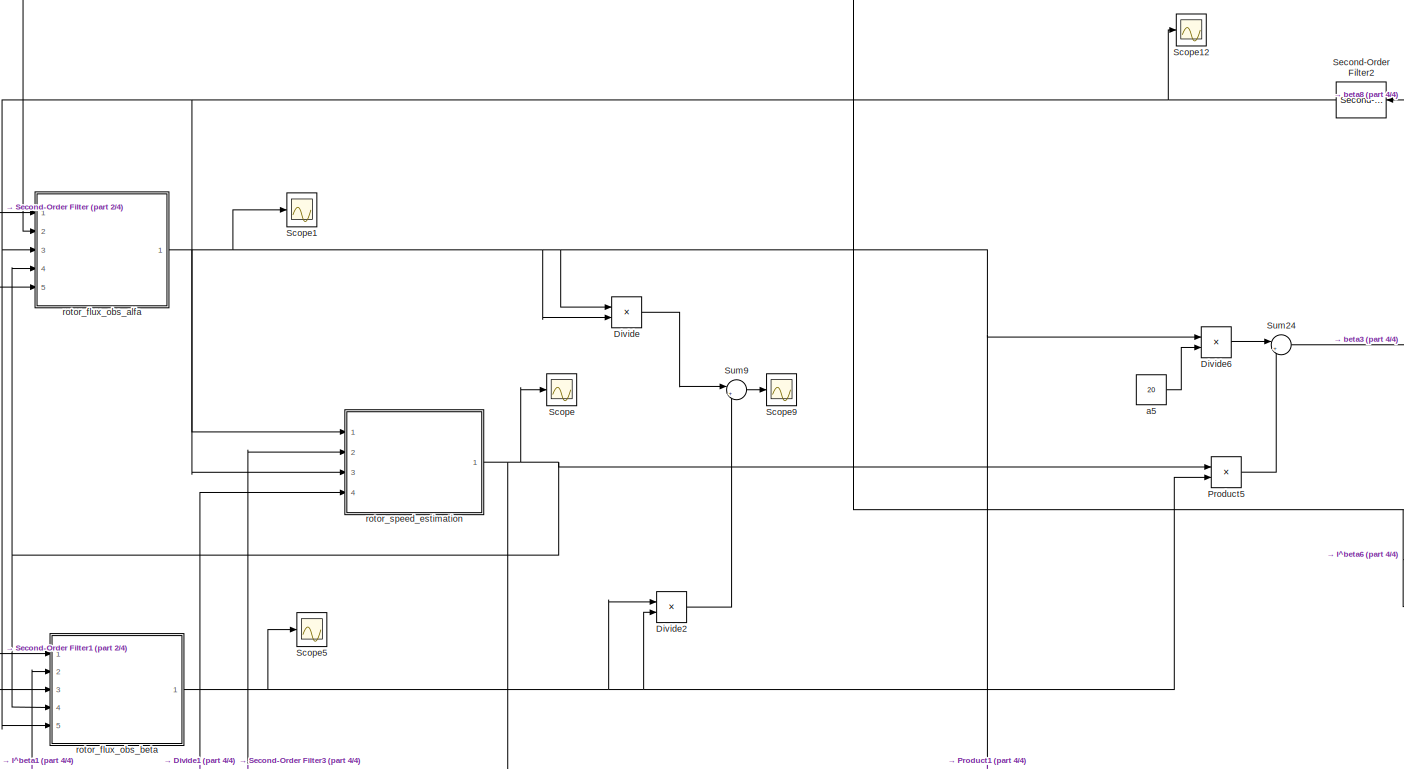
[diagram: root canvas - part 1/4, middle right region]
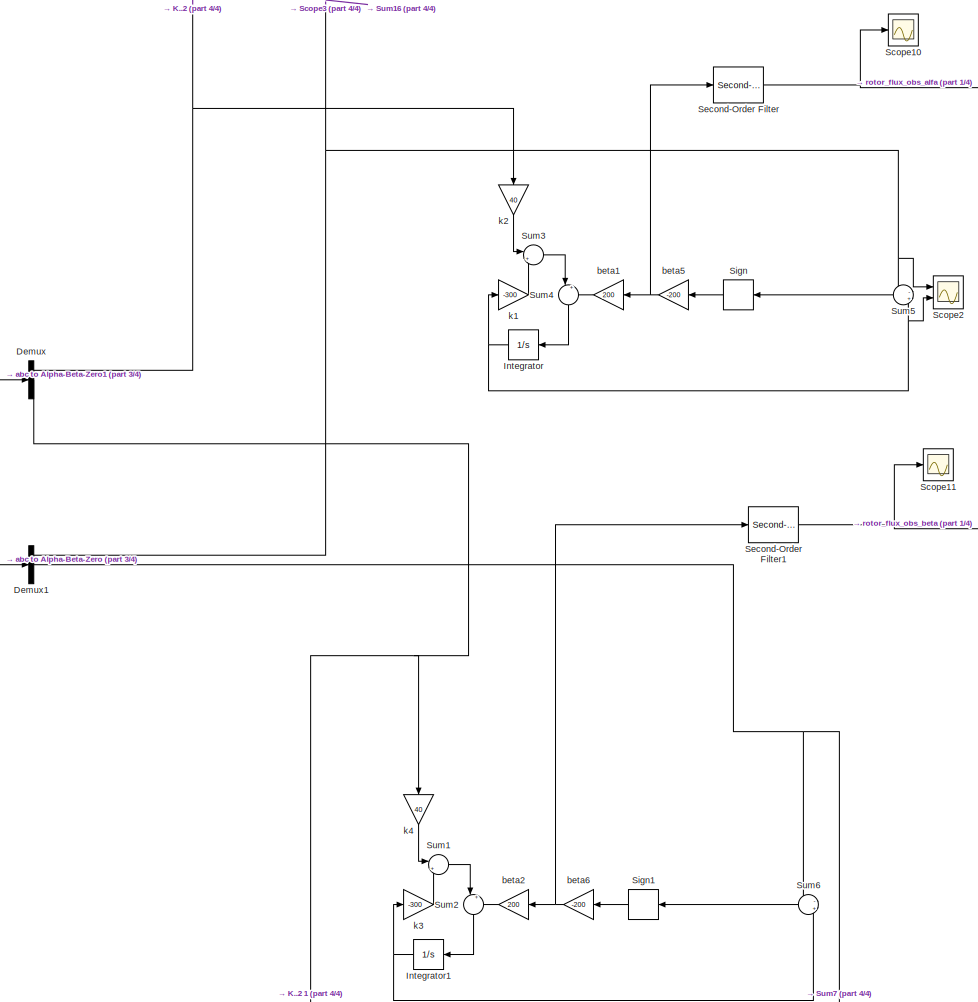
[diagram: root canvas - part 2/4, central region]
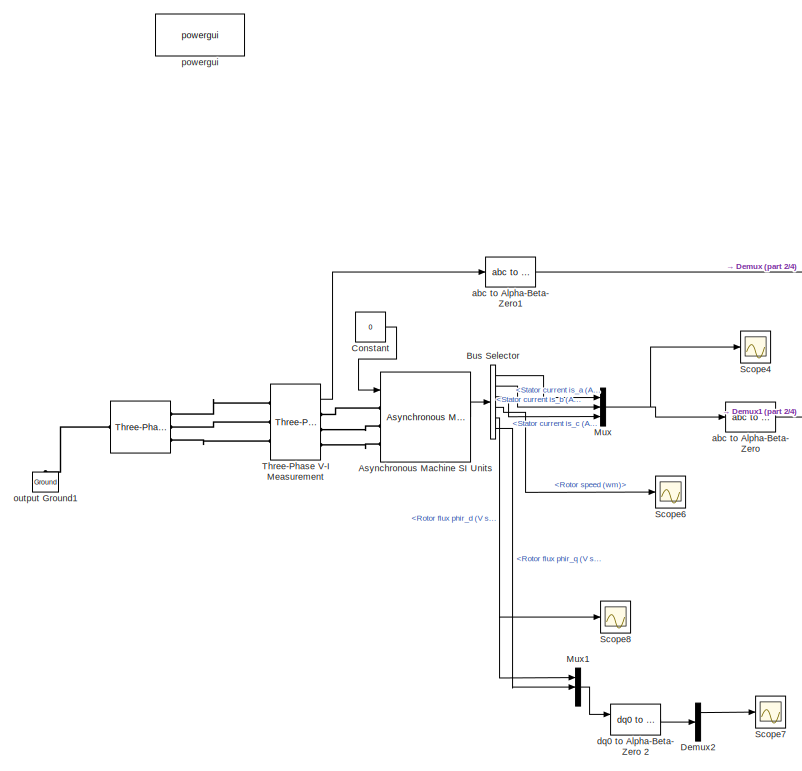
[diagram: root canvas - part 3/4, middle left region]
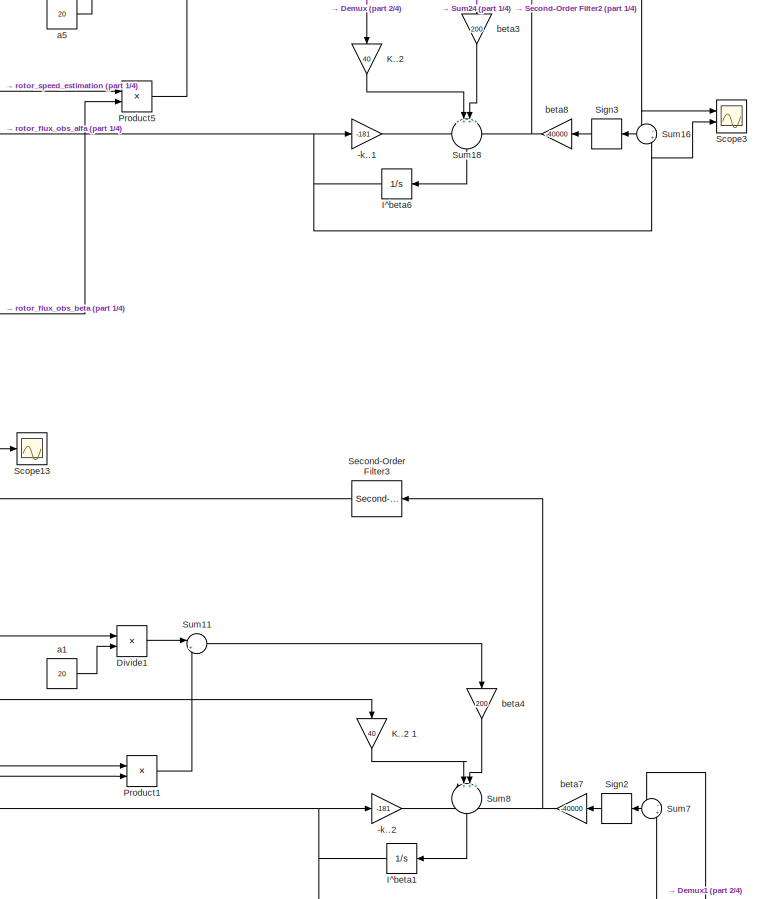
[diagram: root canvas - part 4/4, middle right region]
MODEL slx_8fc154f89b33
KIND model
CONFIG AbsTol = auto
CONFIG FixedStep = auto
CONFIG MaxStep = auto
CONFIG MinStep = auto
CONFIG RelTol = 1e-3
CONFIG SampleTimeConstraint = Unconstrained
CONFIG Solver = VariableStepAuto
CONFIG SolverMode = Auto
CONFIG SolverName = VariableStepAuto
CONFIG StartTime = 0.0
CONFIG StopTime = 20
BLOCK [Reference]    REF=powerlib/Electrical
Sources/Three-Phase
Programmable
Voltage Source
  Ports = [0, 0, 0, 0, 0, 1, 3]
  SourceBlock = powerlib/Electrical\nSources/Three-Phase\nProgrammable\nVoltage Source
  SourceType = Three-Phase Programmable Voltage Source
BLOCK [Gain] -k..1
  Gain = -181
  OutDataTypeStr = Inherit: Inherit via internal rule
  ParamDataTypeStr = Inherit: Inherit via internal rule
  SaturateOnIntegerOverflow = off
BLOCK [Gain] -k..2
  Gain = -181
  OutDataTypeStr = Inherit: Inherit via internal rule
  ParamDataTypeStr = Inherit: Inherit via internal rule
  SaturateOnIntegerOverflow = off
BLOCK [Reference] Asynchronous Machine SI Units  REF=powerlib/Machines/Asynchronous Machine
SI Units
  Ports = [1, 1, 0, 0, 0, 3]
  SourceBlock = powerlib/Machines/Asynchronous Machine\nSI Units
  SourceType = Asynchronous Machine
BLOCK [BusSelector] Bus Selector
  OutputSignals = Stator measurements.Stator current is_a (A),Stator measurements.Stator current is_b (A),Stator measurements.Stator current is_c (A),Mechanical.Rotor speed (wm),Rotor measurements.Rotor flux phir_d (V s),Rotor measurements.Rotor flux phir_q (V s)
  Ports = [1, 6]
BLOCK [Constant] Constant
  Value = 0
BLOCK [Demux] Demux
  DisplayOption = bar
  Outputs = 3
  Ports = [1, 3]
BLOCK [Demux] Demux1
  DisplayOption = bar
  Outputs = 3
  Ports = [1, 3]
BLOCK [Demux] Demux2
  DisplayOption = bar
  Outputs = 3
  Ports = [1, 3]
BLOCK [Product] Divide
  InputSameDT = off
  Inputs = **
  OutDataTypeStr = Inherit: Inherit via internal rule
  Ports = [2, 1]
  RndMeth = Floor
  SaturateOnIntegerOverflow = off
BLOCK [Product] Divide1
  InputSameDT = off
  Inputs = */
  OutDataTypeStr = Inherit: Inherit via internal rule
  Ports = [2, 1]
  RndMeth = Floor
  SaturateOnIntegerOverflow = off
BLOCK [Product] Divide2
  InputSameDT = off
  Inputs = **
  OutDataTypeStr = Inherit: Inherit via internal rule
  Ports = [2, 1]
  RndMeth = Floor
  SaturateOnIntegerOverflow = off
BLOCK [Product] Divide6
  InputSameDT = off
  Inputs = */
  OutDataTypeStr = Inherit: Inherit via internal rule
  Ports = [2, 1]
  RndMeth = Floor
  SaturateOnIntegerOverflow = off
BLOCK [Integrator] I^beta1
  Ports = [1, 1]
BLOCK [Integrator] I^beta6
  Ports = [1, 1]
BLOCK [Integrator] Integrator
  Ports = [1, 1]
BLOCK [Integrator] Integrator1
  Ports = [1, 1]
BLOCK [Gain] K..2 
  Gain = 40
  OutDataTypeStr = Inherit: Inherit via internal rule
  ParamDataTypeStr = Inherit: Inherit via internal rule
  SaturateOnIntegerOverflow = off
BLOCK [Gain] K..2 1
  Gain = 40
  OutDataTypeStr = Inherit: Inherit via internal rule
  ParamDataTypeStr = Inherit: Inherit via internal rule
  SaturateOnIntegerOverflow = off
BLOCK [Mux] Mux
  DisplayOption = bar
  Inputs = 3
  Ports = [3, 1]
BLOCK [Mux] Mux1
  DisplayOption = bar
  Inputs = 3
  Ports = [3, 1]
BLOCK [Product] Product1
  InputSameDT = off
  OutDataTypeStr = Inherit: Inherit via internal rule
  Ports = [2, 1]
  RndMeth = Floor
  SaturateOnIntegerOverflow = off
BLOCK [Product] Product5
  InputSameDT = off
  OutDataTypeStr = Inherit: Inherit via internal rule
  Ports = [2, 1]
  RndMeth = Floor
  SaturateOnIntegerOverflow = off
BLOCK [Scope] Scope
  Ports = [1]
  ScopeSpecificationString = Simulink.scopes.TimeScopeBlockCfg('CurrentConfiguration', extmgr.ConfigurationSet(extmgr.Configuration('Core','General UI',true),extmgr.Configuration('Core','Source UI',true),extmgr.Configuration('Sources','WiredSimulink',true,'DataLoggingVariableName','ScopeData4'),extmgr.Configuration('Visuals','Time Domain',true,'SerializedDisplays',{struct('MinYLimReal','-23.16201','MaxYLimReal','52.52928','YL...<+1761ch>
BLOCK [Scope] Scope1
  Ports = [1]
  ScopeSpecificationString = Simulink.scopes.TimeScopeBlockCfg('CurrentConfiguration', extmgr.ConfigurationSet(extmgr.Configuration('Core','General UI',true),extmgr.Configuration('Core','Source UI',true),extmgr.Configuration('Sources','WiredSimulink',true,'DataLoggingVariableName','ScopeData1'),extmgr.Configuration('Visuals','Time Domain',true,'SerializedDisplays',{struct('MinYLimReal','-37.30643','MaxYLimReal','36.87643','YL...<+1761ch>
BLOCK [Scope] Scope10
  Ports = [1]
  ScopeSpecificationString = Simulink.scopes.TimeScopeBlockCfg('CurrentConfiguration', extmgr.ConfigurationSet(extmgr.Configuration('Core','General UI',true),extmgr.Configuration('Core','Source UI',true),extmgr.Configuration('Sources','WiredSimulink',true,'DataLoggingVariableName','ScopeData1'),extmgr.Configuration('Visuals','Time Domain',true,'SerializedDisplays',{struct('MinYLimReal','-2.141','MaxYLimReal','2.69032','YLabel...<+1447ch>
BLOCK [Scope] Scope11
  Ports = [1]
  ScopeSpecificationString = Simulink.scopes.TimeScopeBlockCfg('CurrentConfiguration', extmgr.ConfigurationSet(extmgr.Configuration('Core','General UI',true),extmgr.Configuration('Core','Source UI',true),extmgr.Configuration('Sources','WiredSimulink',true,'DataLoggingVariableName','ScopeData2'),extmgr.Configuration('Visuals','Time Domain',true,'SerializedDisplays',{struct('MinYLimReal','-195.24675','MaxYLimReal','211.59551','...<+1418ch>
BLOCK [Scope] Scope12
  Ports = [1]
  ScopeSpecificationString = Simulink.scopes.TimeScopeBlockCfg('CurrentConfiguration', extmgr.ConfigurationSet(extmgr.Configuration('Core','General UI',true),extmgr.Configuration('Core','Source UI',true),extmgr.Configuration('Sources','WiredSimulink',true,'DataLoggingVariableName','ScopeData3'),extmgr.Configuration('Visuals','Time Domain',true,'SerializedDisplays',{struct('MinYLimReal','-29490.76733','MaxYLimReal','37395.1165...<+1434ch>
BLOCK [Scope] Scope13
  Ports = [1]
  ScopeSpecificationString = Simulink.scopes.TimeScopeBlockCfg('CurrentConfiguration', extmgr.ConfigurationSet(extmgr.Configuration('Core','General UI',true),extmgr.Configuration('Core','Source UI',true),extmgr.Configuration('Sources','WiredSimulink',true,'DataLoggingVariableName','ScopeData4'),extmgr.Configuration('Visuals','Time Domain',true,'SerializedDisplays',{struct('MinYLimReal','-35731.72435','MaxYLimReal','38317.4771...<+1405ch>
BLOCK [Scope] Scope2
  NumInputPorts = 2
  Ports = [2]
  ScopeSpecificationString = Simulink.scopes.TimeScopeBlockCfg('CurrentConfiguration', extmgr.ConfigurationSet(extmgr.Configuration('Core','General UI',true),extmgr.Configuration('Core','Source UI',true),extmgr.Configuration('Sources','WiredSimulink',true,'DataLoggingVariableName','ScopeData1'),extmgr.Configuration('Visuals','Time Domain',true,'SerializedDisplays',{struct('MinYLimReal','-18.00813','MaxYLimReal','15.06814','YL...<+1793ch>
BLOCK [Scope] Scope3
  NumInputPorts = 2
  Ports = [2]
  ScopeSpecificationString = Simulink.scopes.TimeScopeBlockCfg('CurrentConfiguration', extmgr.ConfigurationSet(extmgr.Configuration('Core','General UI',true),extmgr.Configuration('Core','Source UI',true),extmgr.Configuration('Sources','WiredSimulink',true,'DataLoggingVariableName','ScopeData3'),extmgr.Configuration('Visuals','Time Domain',true,'SerializedDisplays',{struct('MinYLimReal','-36012277195741.312','MaxYLimReal','369...<+1877ch>
BLOCK [Scope] Scope4
  Ports = [1]
  ScopeSpecificationString = Simulink.scopes.TimeScopeBlockCfg('CurrentConfiguration', extmgr.ConfigurationSet(extmgr.Configuration('Core','General UI',true),extmgr.Configuration('Core','Source UI',true),extmgr.Configuration('Sources','WiredSimulink',true,'DataLoggingVariableName','ScopeData1'),extmgr.Configuration('Visuals','Time Domain',true,'SerializedDisplays',{struct('MinYLimReal','-179.12191','MaxYLimReal','191.37246','...<+1498ch>
BLOCK [Scope] Scope5
  Ports = [1]
  ScopeSpecificationString = Simulink.scopes.TimeScopeBlockCfg('CurrentConfiguration', extmgr.ConfigurationSet(extmgr.Configuration('Core','General UI',true),extmgr.Configuration('Core','Source UI',true),extmgr.Configuration('Sources','WiredSimulink',true,'DataLoggingVariableName','ScopeData2'),extmgr.Configuration('Visuals','Time Domain',true,'SerializedDisplays',{struct('MinYLimReal','-761705385.54274','MaxYLimReal','683325...<+1821ch>
BLOCK [Scope] Scope6
  Ports = [1]
  ScopeSpecificationString = Simulink.scopes.TimeScopeBlockCfg('CurrentConfiguration', extmgr.ConfigurationSet(extmgr.Configuration('Core','General UI',true),extmgr.Configuration('Core','Source UI',true),extmgr.Configuration('Sources','WiredSimulink',true,'DataLoggingVariableName','ScopeData2'),extmgr.Configuration('Visuals','Time Domain',true,'SerializedDisplays',{struct('MinYLimReal','78.06459','MaxYLimReal','548.3218','YLa...<+1458ch>
BLOCK [Scope] Scope7
  Ports = [1]
  ScopeSpecificationString = Simulink.scopes.TimeScopeBlockCfg('CurrentConfiguration', extmgr.ConfigurationSet(extmgr.Configuration('Core','General UI',true),extmgr.Configuration('Core','Source UI',true),extmgr.Configuration('Sources','WiredSimulink',true,'DataLoggingVariableName','ScopeData1'),extmgr.Configuration('Visuals','Time Domain',true,'SerializedDisplays',{struct('MinYLimReal','-2.47255','MaxYLimReal','2.51963','YLab...<+1442ch>
BLOCK [Scope] Scope8
  Ports = [1]
  ScopeSpecificationString = Simulink.scopes.TimeScopeBlockCfg('CurrentConfiguration', extmgr.ConfigurationSet(extmgr.Configuration('Core','General UI',true),extmgr.Configuration('Core','Source UI',true),extmgr.Configuration('Sources','WiredSimulink',true,'DataLoggingVariableName','ScopeData2'),extmgr.Configuration('Visuals','Time Domain',true,'SerializedDisplays',{struct('MinYLimReal','-0.85058','MaxYLimReal','1.03338','YLab...<+1459ch>
BLOCK [Scope] Scope9
  Ports = [1]
  ScopeSpecificationString = Simulink.scopes.TimeScopeBlockCfg('CurrentConfiguration', extmgr.ConfigurationSet(extmgr.Configuration('Core','General UI',true),extmgr.Configuration('Core','Source UI',true),extmgr.Configuration('Sources','WiredSimulink',true,'DataLoggingVariableName','ScopeData1'),extmgr.Configuration('Visuals','Time Domain',true,'SerializedDisplays',{struct('MinYLimReal','-134.65451','MaxYLimReal','1211.89059',...<+1757ch>
BLOCK [Reference] Second-Order Filter  REF=powerlib_meascontrol/Filters/Second-Order
Filter
  Ports = [1, 1]
  SourceBlock = powerlib_meascontrol/Filters/Second-Order\nFilter
  SourceType = Second-Order Filter
BLOCK [Reference] Second-Order Filter1  REF=powerlib_meascontrol/Filters/Second-Order
Filter
  Ports = [1, 1]
  SourceBlock = powerlib_meascontrol/Filters/Second-Order\nFilter
  SourceType = Second-Order Filter
BLOCK [Reference] Second-Order Filter2  REF=powerlib_meascontrol/Filters/Second-Order
Filter
  Ports = [1, 1]
  SourceBlock = powerlib_meascontrol/Filters/Second-Order\nFilter
  SourceType = Second-Order Filter
BLOCK [Reference] Second-Order Filter3  REF=powerlib_meascontrol/Filters/Second-Order
Filter
  Ports = [1, 1]
  SourceBlock = powerlib_meascontrol/Filters/Second-Order\nFilter
  SourceType = Second-Order Filter
BLOCK [Signum] Sign
BLOCK [Signum] Sign1
BLOCK [Signum] Sign2
BLOCK [Signum] Sign3
BLOCK [Sum] Sum1
  IconShape = round
  InputSameDT = off
  Inputs = |++
  OutDataTypeStr = Inherit: Inherit via internal rule
  Ports = [2, 1]
  SaturateOnIntegerOverflow = off
BLOCK [Sum] Sum11
  IconShape = round
  InputSameDT = off
  Inputs = |+-
  OutDataTypeStr = Inherit: Inherit via internal rule
  Ports = [2, 1]
  SaturateOnIntegerOverflow = off
BLOCK [Sum] Sum16
  IconShape = round
  InputSameDT = off
  Inputs = -+
  OutDataTypeStr = Inherit: Inherit via internal rule
  Ports = [2, 1]
  SaturateOnIntegerOverflow = off
BLOCK [Sum] Sum18
  IconShape = round
  InputSameDT = off
  Inputs = ++++
  OutDataTypeStr = Inherit: Inherit via internal rule
  Ports = [4, 1]
  SaturateOnIntegerOverflow = off
BLOCK [Sum] Sum2
  IconShape = round
  InputSameDT = off
  Inputs = |++
  OutDataTypeStr = Inherit: Inherit via internal rule
  Ports = [2, 1]
  SaturateOnIntegerOverflow = off
BLOCK [Sum] Sum24
  IconShape = round
  InputSameDT = off
  Inputs = |++
  OutDataTypeStr = Inherit: Inherit via internal rule
  Ports = [2, 1]
  SaturateOnIntegerOverflow = off
BLOCK [Sum] Sum3
  IconShape = round
  InputSameDT = off
  Inputs = |++
  OutDataTypeStr = Inherit: Inherit via internal rule
  Ports = [2, 1]
  SaturateOnIntegerOverflow = off
BLOCK [Sum] Sum4
  IconShape = round
  InputSameDT = off
  Inputs = |++
  OutDataTypeStr = Inherit: Inherit via internal rule
  Ports = [2, 1]
  SaturateOnIntegerOverflow = off
BLOCK [Sum] Sum5
  IconShape = round
  InputSameDT = off
  Inputs = -+
  OutDataTypeStr = Inherit: Inherit via internal rule
  Ports = [2, 1]
  SaturateOnIntegerOverflow = off
BLOCK [Sum] Sum6
  IconShape = round
  InputSameDT = off
  Inputs = -+
  OutDataTypeStr = Inherit: Inherit via internal rule
  Ports = [2, 1]
  SaturateOnIntegerOverflow = off
BLOCK [Sum] Sum7
  IconShape = round
  InputSameDT = off
  Inputs = -+
  OutDataTypeStr = Inherit: Inherit via internal rule
  Ports = [2, 1]
  SaturateOnIntegerOverflow = off
BLOCK [Sum] Sum8
  IconShape = round
  InputSameDT = off
  Inputs = |++++
  OutDataTypeStr = Inherit: Inherit via internal rule
  Ports = [4, 1]
  SaturateOnIntegerOverflow = off
BLOCK [Sum] Sum9
  IconShape = round
  InputSameDT = off
  Inputs = |++
  OutDataTypeStr = Inherit: Inherit via internal rule
  Ports = [2, 1]
  SaturateOnIntegerOverflow = off
BLOCK [Reference] Three-Phase V-I Measurement  REF=powerlib/Measurements/Three-Phase
V-I Measurement
  Ports = [0, 1, 0, 0, 0, 3, 3]
  SourceBlock = powerlib/Measurements/Three-Phase\nV-I Measurement
  SourceType = Three-Phase VI Measurement
BLOCK [Constant] a1
  Value = 20
BLOCK [Constant] a5
  Value = 20
BLOCK [Reference] abc to Alpha-Beta-Zero  REF=powerlib_meascontrol/Transformations/abc to
Alpha-Beta-Zero
  Ports = [1, 1]
  SourceBlock = powerlib_meascontrol/Transformations/abc to\nAlpha-Beta-Zero
  SourceType = abc to Alpha-Beta-Zero Transformation
BLOCK [Reference] abc to Alpha-Beta-Zero1  REF=powerlib_meascontrol/Transformations/abc to
Alpha-Beta-Zero
  Ports = [1, 1]
  SourceBlock = powerlib_meascontrol/Transformations/abc to\nAlpha-Beta-Zero
  SourceType = abc to Alpha-Beta-Zero Transformation
BLOCK [Gain] beta1
  Gain = 200
  OutDataTypeStr = Inherit: Inherit via internal rule
  ParamDataTypeStr = Inherit: Inherit via internal rule
  SaturateOnIntegerOverflow = off
BLOCK [Gain] beta2
  Gain = 200
  OutDataTypeStr = Inherit: Inherit via internal rule
  ParamDataTypeStr = Inherit: Inherit via internal rule
  SaturateOnIntegerOverflow = off
BLOCK [Gain] beta3
  Gain = 200
  OutDataTypeStr = Inherit: Inherit via internal rule
  ParamDataTypeStr = Inherit: Inherit via internal rule
  SaturateOnIntegerOverflow = off
BLOCK [Gain] beta4
  Gain = 200
  OutDataTypeStr = Inherit: Inherit via internal rule
  ParamDataTypeStr = Inherit: Inherit via internal rule
  SaturateOnIntegerOverflow = off
BLOCK [Gain] beta5
  Gain = -200
  OutDataTypeStr = Inherit: Inherit via internal rule
  ParamDataTypeStr = Inherit: Inherit via internal rule
  SaturateOnIntegerOverflow = off
BLOCK [Gain] beta6
  Gain = -200
  OutDataTypeStr = Inherit: Inherit via internal rule
  ParamDataTypeStr = Inherit: Inherit via internal rule
  SaturateOnIntegerOverflow = off
BLOCK [Gain] beta7
  Gain = -40000
  OutDataTypeStr = Inherit: Inherit via internal rule
  ParamDataTypeStr = Inherit: Inherit via internal rule
  SaturateOnIntegerOverflow = off
BLOCK [Gain] beta8
  Gain = -40000
  OutDataTypeStr = Inherit: Inherit via internal rule
  ParamDataTypeStr = Inherit: Inherit via internal rule
  SaturateOnIntegerOverflow = off
BLOCK [Reference] dq0 to Alpha-Beta-Zero 2  REF=powerlib_meascontrol/Transformations/dq0 to
Alpha-Beta-Zero
  Ports = [2, 1]
  SourceBlock = powerlib_meascontrol/Transformations/dq0 to\nAlpha-Beta-Zero
  SourceType = dq0 to Alpha-Beta-Zero Transformation
BLOCK [Gain] k1
  Gain = -300
  OutDataTypeStr = Inherit: Inherit via internal rule
  ParamDataTypeStr = Inherit: Inherit via internal rule
  SaturateOnIntegerOverflow = off
BLOCK [Gain] k2
  Gain = 40
  OutDataTypeStr = Inherit: Inherit via internal rule
  ParamDataTypeStr = Inherit: Inherit via internal rule
  SaturateOnIntegerOverflow = off
BLOCK [Gain] k3
  Gain = -300
  OutDataTypeStr = Inherit: Inherit via internal rule
  ParamDataTypeStr = Inherit: Inherit via internal rule
  SaturateOnIntegerOverflow = off
BLOCK [Gain] k4
  Gain = 40
  OutDataTypeStr = Inherit: Inherit via internal rule
  ParamDataTypeStr = Inherit: Inherit via internal rule
  SaturateOnIntegerOverflow = off
BLOCK [Reference] output Ground1  REF=powerlib/Elements/Ground
  AttributesFormatString = \n
  Ports = [0, 0, 0, 0, 0, 1]
  SourceBlock = powerlib/Elements/Ground
  SourceType = Ground
BLOCK [Reference] powergui  REF=powerlib/powergui
  Ports = []
  Priority = 2
  SourceBlock = powerlib/powergui
  SourceType = PSB option menu block
  UserDataPersistent = on
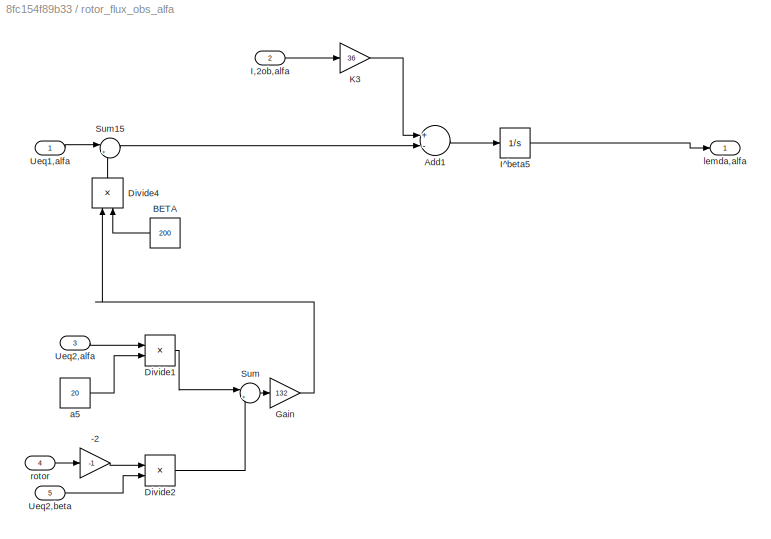
BLOCK [SubSystem] rotor_flux_obs_alfa
  Ports = [5, 1]
  RequestExecContextInheritance = off
  Variant = off
BLOCK [Gain] rotor_flux_obs_alfa/-2
  Gain = -1
  OutDataTypeStr = Inherit: Inherit via internal rule
  ParamDataTypeStr = Inherit: Inherit via internal rule
  SaturateOnIntegerOverflow = off
BLOCK [Sum] rotor_flux_obs_alfa/Add1
  InputSameDT = off
  Inputs = +-
  OutDataTypeStr = Inherit: Inherit via internal rule
  Ports = [2, 1]
  SaturateOnIntegerOverflow = off
BLOCK [Constant] rotor_flux_obs_alfa/BETA
  Value = 200
BLOCK [Product] rotor_flux_obs_alfa/Divide1
  InputSameDT = off
  Inputs = */
  OutDataTypeStr = Inherit: Inherit via internal rule
  Ports = [2, 1]
  RndMeth = Floor
  SaturateOnIntegerOverflow = off
BLOCK [Product] rotor_flux_obs_alfa/Divide2
  InputSameDT = off
  Inputs = **
  OutDataTypeStr = Inherit: Inherit via internal rule
  Ports = [2, 1]
  RndMeth = Floor
  SaturateOnIntegerOverflow = off
BLOCK [Product] rotor_flux_obs_alfa/Divide4
  InputSameDT = off
  Inputs = */
  OutDataTypeStr = Inherit: Inherit via internal rule
  Ports = [2, 1]
  RndMeth = Floor
  SaturateOnIntegerOverflow = off
BLOCK [Gain] rotor_flux_obs_alfa/Gain
  Gain = 132
  OutDataTypeStr = Inherit: Inherit via internal rule
  ParamDataTypeStr = Inherit: Inherit via internal rule
  SaturateOnIntegerOverflow = off
BLOCK [Inport] rotor_flux_obs_alfa/I,2ob,alfa
  IconDisplay = Port number
  Port = 2
BLOCK [Integrator] rotor_flux_obs_alfa/I^beta5
  Ports = [1, 1]
BLOCK [Gain] rotor_flux_obs_alfa/K3 
  Gain = 36
  OutDataTypeStr = Inherit: Inherit via internal rule
  ParamDataTypeStr = Inherit: Inherit via internal rule
  SaturateOnIntegerOverflow = off
BLOCK [Sum] rotor_flux_obs_alfa/Sum
  IconShape = round
  InputSameDT = off
  Inputs = |++
  OutDataTypeStr = Inherit: Inherit via internal rule
  Ports = [2, 1]
  SaturateOnIntegerOverflow = off
BLOCK [Sum] rotor_flux_obs_alfa/Sum15
  IconShape = round
  InputSameDT = off
  Inputs = |+-
  OutDataTypeStr = Inherit: Inherit via internal rule
  Ports = [2, 1]
  SaturateOnIntegerOverflow = off
BLOCK [Inport] rotor_flux_obs_alfa/Ueq1,alfa 
  IconDisplay = Port number
BLOCK [Inport] rotor_flux_obs_alfa/Ueq2,alfa 
  IconDisplay = Port number
  Port = 3
BLOCK [Inport] rotor_flux_obs_alfa/Ueq2,beta 
  IconDisplay = Port number
  Port = 5
BLOCK [Constant] rotor_flux_obs_alfa/a5
  Value = 20
BLOCK [Outport] rotor_flux_obs_alfa/lemda,alfa
  IconDisplay = Port number
BLOCK [Inport] rotor_flux_obs_alfa/rotor
  IconDisplay = Port number
  Port = 4
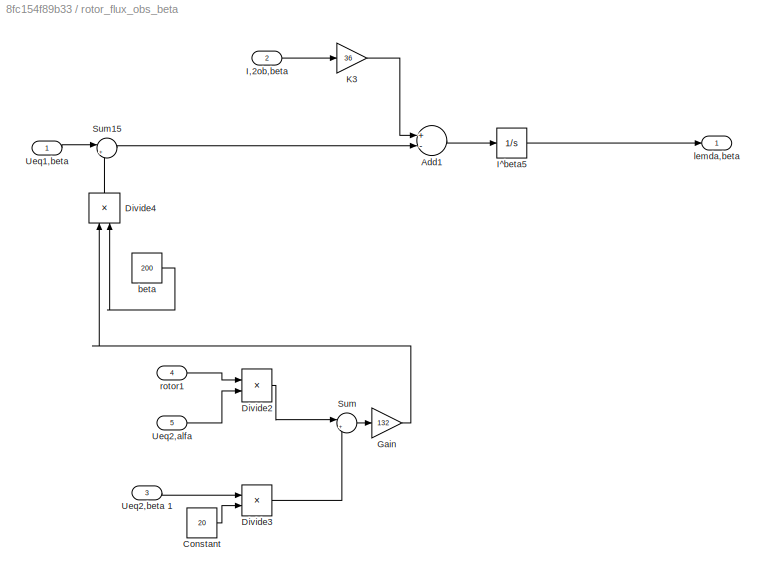
BLOCK [SubSystem] rotor_flux_obs_beta
  Ports = [5, 1]
  RequestExecContextInheritance = off
  Variant = off
BLOCK [Sum] rotor_flux_obs_beta/Add1
  InputSameDT = off
  Inputs = +-
  OutDataTypeStr = Inherit: Inherit via internal rule
  Ports = [2, 1]
  SaturateOnIntegerOverflow = off
BLOCK [Constant] rotor_flux_obs_beta/Constant
  Value = 20
BLOCK [Product] rotor_flux_obs_beta/Divide2
  InputSameDT = off
  Inputs = **
  OutDataTypeStr = Inherit: Inherit via internal rule
  Ports = [2, 1]
  RndMeth = Floor
  SaturateOnIntegerOverflow = off
BLOCK [Product] rotor_flux_obs_beta/Divide3
  InputSameDT = off
  Inputs = */
  OutDataTypeStr = Inherit: Inherit via internal rule
  Ports = [2, 1]
  RndMeth = Floor
  SaturateOnIntegerOverflow = off
BLOCK [Product] rotor_flux_obs_beta/Divide4
  InputSameDT = off
  Inputs = */
  OutDataTypeStr = Inherit: Inherit via internal rule
  Ports = [2, 1]
  RndMeth = Floor
  SaturateOnIntegerOverflow = off
BLOCK [Gain] rotor_flux_obs_beta/Gain
  Gain = 132
  OutDataTypeStr = Inherit: Inherit via internal rule
  ParamDataTypeStr = Inherit: Inherit via internal rule
  SaturateOnIntegerOverflow = off
BLOCK [Inport] rotor_flux_obs_beta/I,2ob,beta
  IconDisplay = Port number
  Port = 2
BLOCK [Integrator] rotor_flux_obs_beta/I^beta5
  Ports = [1, 1]
BLOCK [Gain] rotor_flux_obs_beta/K3 
  Gain = 36
  OutDataTypeStr = Inherit: Inherit via internal rule
  ParamDataTypeStr = Inherit: Inherit via internal rule
  SaturateOnIntegerOverflow = off
BLOCK [Sum] rotor_flux_obs_beta/Sum
  IconShape = round
  InputSameDT = off
  Inputs = |++
  OutDataTypeStr = Inherit: Inherit via internal rule
  Ports = [2, 1]
  SaturateOnIntegerOverflow = off
BLOCK [Sum] rotor_flux_obs_beta/Sum15
  IconShape = round
  InputSameDT = off
  Inputs = |+-
  OutDataTypeStr = Inherit: Inherit via internal rule
  Ports = [2, 1]
  SaturateOnIntegerOverflow = off
BLOCK [Inport] rotor_flux_obs_beta/Ueq1,beta 
  IconDisplay = Port number
BLOCK [Inport] rotor_flux_obs_beta/Ueq2,alfa 
  IconDisplay = Port number
  Port = 5
BLOCK [Inport] rotor_flux_obs_beta/Ueq2,beta 1
  IconDisplay = Port number
  Port = 3
BLOCK [Constant] rotor_flux_obs_beta/beta
  Value = 200
BLOCK [Outport] rotor_flux_obs_beta/lemda,beta
  IconDisplay = Port number
BLOCK [Inport] rotor_flux_obs_beta/rotor1
  IconDisplay = Port number
  Port = 4
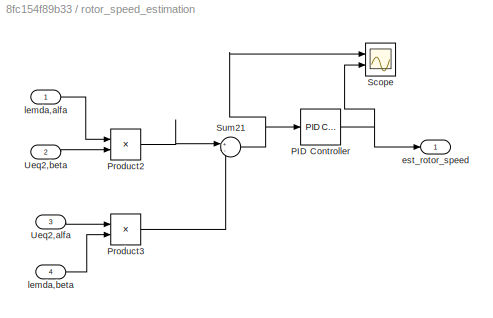
BLOCK [SubSystem] rotor_speed_estimation
  Ports = [4, 1]
  RequestExecContextInheritance = off
  Variant = off
BLOCK [Reference] rotor_speed_estimation/PID Controller  REF=simulink/Continuous/PID Controller
  Ports = [1, 1]
  SourceBlock = simulink/Continuous/PID Controller
  SourceType = PID 1dof
BLOCK [Product] rotor_speed_estimation/Product2
  InputSameDT = off
  OutDataTypeStr = Inherit: Inherit via internal rule
  Ports = [2, 1]
  RndMeth = Floor
  SaturateOnIntegerOverflow = off
BLOCK [Product] rotor_speed_estimation/Product3
  InputSameDT = off
  OutDataTypeStr = Inherit: Inherit via internal rule
  Ports = [2, 1]
  RndMeth = Floor
  SaturateOnIntegerOverflow = off
BLOCK [Scope] rotor_speed_estimation/Scope
  NumInputPorts = 2
  Ports = [2]
  ScopeSpecificationString = Simulink.scopes.TimeScopeBlockCfg('CurrentConfiguration', extmgr.ConfigurationSet(extmgr.Configuration('Core','General UI',true),extmgr.Configuration('Core','Source UI',true),extmgr.Configuration('Sources','WiredSimulink',true,'DataLoggingVariableName','ScopeData1'),extmgr.Configuration('Visuals','Time Domain',true,'SerializedDisplays',{struct('MinYLimReal','-435.07958','MaxYLimReal','125.2025','Y...<+1468ch>
BLOCK [Sum] rotor_speed_estimation/Sum21
  IconShape = round
  InputSameDT = off
  Inputs = +-
  OutDataTypeStr = Inherit: Inherit via internal rule
  Ports = [2, 1]
  SaturateOnIntegerOverflow = off
BLOCK [Inport] rotor_speed_estimation/Ueq2,alfa
  IconDisplay = Port number
  Port = 3
BLOCK [Inport] rotor_speed_estimation/Ueq2,beta
  IconDisplay = Port number
  Port = 2
BLOCK [Outport] rotor_speed_estimation/est_rotor_speed
  IconDisplay = Port number
BLOCK [Inport] rotor_speed_estimation/lemda,alfa
  IconDisplay = Port number
BLOCK [Inport] rotor_speed_estimation/lemda,beta
  IconDisplay = Port number
  Port = 4
LINE -k..1:1 -> Sum18:1
LINE -k..2:1 -> Sum8:1
LINE Asynchronous Machine SI Units:1 -> Bus Selector:1
LINE Bus Selector:1 -> Mux:1
LINE Bus Selector:2 -> Mux:2
LINE Bus Selector:3 -> Mux:3
LINE Bus Selector:4 -> Scope6:1
NET Bus Selector:5 -> Mux1:1, Scope8:1
LINE Bus Selector:6 -> Mux1:2
LINE Constant:1 -> Asynchronous Machine SI Units:1
NET Demux1:1 -> Scope2:1, Scope3:1, Sum16:1, Sum5:1
NET Demux1:2 -> Sum6:1, Sum7:1
LINE Demux2:1 -> Scope7:1
NET Demux:1 -> K..2 :1, k2:1
NET Demux:2 -> K..2 1:1, k4:1
LINE Divide1:1 -> Sum11:1
LINE Divide2:1 -> Sum9:2
LINE Divide6:1 -> Sum24:1
LINE Divide:1 -> Sum9:1
NET I^beta1:1 -> -k..2:1, Sum7:2, rotor_flux_obs_beta:2
NET I^beta6:1 -> -k..1:1, Scope3:2, Sum16:2, rotor_flux_obs_alfa:2
NET Integrator1:1 -> Sum6:2, k3:1
NET Integrator:1 -> Scope2:2, Sum5:2, k1:1
LINE K..2 1:1 -> Sum8:2
LINE K..2 :1 -> Sum18:2
LINE Mux1:1 -> dq0 to Alpha-Beta-Zero 2:1
NET Mux:1 -> Scope4:1, abc to Alpha-Beta-Zero:1
LINE Product1:1 -> Sum11:2
LINE Product5:1 -> Sum24:2
NET Second-Order Filter1:1 -> Scope11:1, rotor_flux_obs_beta:1
NET Second-Order Filter2:1 -> Scope12:1, rotor_flux_obs_alfa:3, rotor_flux_obs_beta:5, rotor_speed_estimation:3
NET Second-Order Filter3:1 -> Scope13:1, rotor_flux_obs_alfa:5, rotor_flux_obs_beta:3, rotor_speed_estimation:2
NET Second-Order Filter:1 -> Scope10:1, rotor_flux_obs_alfa:1
LINE Sign1:1 -> beta6:1
LINE Sign2:1 -> beta7:1
LINE Sign3:1 -> beta8:1
LINE Sign:1 -> beta5:1
LINE Sum11:1 -> beta4:1
LINE Sum16:1 -> Sign3:1
LINE Sum18:1 -> I^beta6:1
LINE Sum1:1 -> Sum2:1
LINE Sum24:1 -> beta3:1
LINE Sum2:1 -> Integrator1:1
LINE Sum3:1 -> Sum4:1
LINE Sum4:1 -> Integrator:1
LINE Sum5:1 -> Sign:1
LINE Sum6:1 -> Sign1:1
LINE Sum7:1 -> Sign2:1
LINE Sum8:1 -> I^beta1:1
LINE Sum9:1 -> Scope9:1
LINE Three-Phase V-I Measurement:1 -> abc to Alpha-Beta-Zero1:1
LINE a1:1 -> Divide1:2
LINE a5:1 -> Divide6:2
LINE abc to Alpha-Beta-Zero1:1 -> Demux:1
LINE abc to Alpha-Beta-Zero:1 -> Demux1:1
LINE beta1:1 -> Sum4:2
LINE beta2:1 -> Sum2:2
LINE beta3:1 -> Sum18:3
LINE beta4:1 -> Sum8:3
NET beta5:1 -> Second-Order Filter:1, beta1:1
NET beta6:1 -> Second-Order Filter1:1, beta2:1
NET beta7:1 -> Second-Order Filter3:1, Sum8:4
NET beta8:1 -> Second-Order Filter2:1, Sum18:4
LINE dq0 to Alpha-Beta-Zero 2:1 -> Demux2:1
LINE k1:1 -> Sum3:2
LINE k2:1 -> Sum3:1
LINE k3:1 -> Sum1:2
LINE k4:1 -> Sum1:1
LINE rotor_flux_obs_alfa/-2:1 -> rotor_flux_obs_alfa/Divide2:1
LINE rotor_flux_obs_alfa/Add1:1 -> rotor_flux_obs_alfa/I^beta5:1
LINE rotor_flux_obs_alfa/BETA:1 -> rotor_flux_obs_alfa/Divide4:2
LINE rotor_flux_obs_alfa/Divide1:1 -> rotor_flux_obs_alfa/Sum:1
LINE rotor_flux_obs_alfa/Divide2:1 -> rotor_flux_obs_alfa/Sum:2
LINE rotor_flux_obs_alfa/Divide4:1 -> rotor_flux_obs_alfa/Sum15:2
LINE rotor_flux_obs_alfa/Gain:1 -> rotor_flux_obs_alfa/Divide4:1
LINE rotor_flux_obs_alfa/I,2ob,alfa:1 -> rotor_flux_obs_alfa/K3 :1
LINE rotor_flux_obs_alfa/I^beta5:1 -> rotor_flux_obs_alfa/lemda,alfa:1
LINE rotor_flux_obs_alfa/K3 :1 -> rotor_flux_obs_alfa/Add1:1
LINE rotor_flux_obs_alfa/Sum15:1 -> rotor_flux_obs_alfa/Add1:2
LINE rotor_flux_obs_alfa/Sum:1 -> rotor_flux_obs_alfa/Gain:1
LINE rotor_flux_obs_alfa/Ueq1,alfa :1 -> rotor_flux_obs_alfa/Sum15:1
LINE rotor_flux_obs_alfa/Ueq2,alfa :1 -> rotor_flux_obs_alfa/Divide1:1
LINE rotor_flux_obs_alfa/Ueq2,beta :1 -> rotor_flux_obs_alfa/Divide2:2
LINE rotor_flux_obs_alfa/a5:1 -> rotor_flux_obs_alfa/Divide1:2
LINE rotor_flux_obs_alfa/rotor:1 -> rotor_flux_obs_alfa/-2:1
NET rotor_flux_obs_alfa:1 -> Divide6:1, Divide:1, Divide:2, Product1:1, Scope1:1, rotor_speed_estimation:1
LINE rotor_flux_obs_beta/Add1:1 -> rotor_flux_obs_beta/I^beta5:1
LINE rotor_flux_obs_beta/Constant:1 -> rotor_flux_obs_beta/Divide3:2
LINE rotor_flux_obs_beta/Divide2:1 -> rotor_flux_obs_beta/Sum:1
LINE rotor_flux_obs_beta/Divide3:1 -> rotor_flux_obs_beta/Sum:2
LINE rotor_flux_obs_beta/Divide4:1 -> rotor_flux_obs_beta/Sum15:2
LINE rotor_flux_obs_beta/Gain:1 -> rotor_flux_obs_beta/Divide4:1
LINE rotor_flux_obs_beta/I,2ob,beta:1 -> rotor_flux_obs_beta/K3 :1
LINE rotor_flux_obs_beta/I^beta5:1 -> rotor_flux_obs_beta/lemda,beta:1
LINE rotor_flux_obs_beta/K3 :1 -> rotor_flux_obs_beta/Add1:1
LINE rotor_flux_obs_beta/Sum15:1 -> rotor_flux_obs_beta/Add1:2
LINE rotor_flux_obs_beta/Sum:1 -> rotor_flux_obs_beta/Gain:1
LINE rotor_flux_obs_beta/Ueq1,beta :1 -> rotor_flux_obs_beta/Sum15:1
LINE rotor_flux_obs_beta/Ueq2,alfa :1 -> rotor_flux_obs_beta/Divide2:2
LINE rotor_flux_obs_beta/Ueq2,beta 1:1 -> rotor_flux_obs_beta/Divide3:1
LINE rotor_flux_obs_beta/beta:1 -> rotor_flux_obs_beta/Divide4:2
LINE rotor_flux_obs_beta/rotor1:1 -> rotor_flux_obs_beta/Divide2:1
NET rotor_flux_obs_beta:1 -> Divide1:1, Divide2:1, Divide2:2, Product5:2, Scope5:1, rotor_speed_estimation:4
NET rotor_speed_estimation/PID Controller:1 -> rotor_speed_estimation/Scope:2, rotor_speed_estimation/est_rotor_speed:1
LINE rotor_speed_estimation/Product2:1 -> rotor_speed_estimation/Sum21:1
LINE rotor_speed_estimation/Product3:1 -> rotor_speed_estimation/Sum21:2
NET rotor_speed_estimation/Sum21:1 -> rotor_speed_estimation/PID Controller:1, rotor_speed_estimation/Scope:1
LINE rotor_speed_estimation/Ueq2,alfa:1 -> rotor_speed_estimation/Product3:1
LINE rotor_speed_estimation/Ueq2,beta:1 -> rotor_speed_estimation/Product2:2
LINE rotor_speed_estimation/lemda,alfa:1 -> rotor_speed_estimation/Product2:1
LINE rotor_speed_estimation/lemda,beta:1 -> rotor_speed_estimation/Product3:2
NET rotor_speed_estimation:1 -> Product1:2, Product5:1, Scope:1, rotor_flux_obs_alfa:4, rotor_flux_obs_beta:4
PLINE  :LConn1 -- output Ground1:LConn1
PLINE  :RConn1 -- Three-Phase V-I Measurement:LConn1
PLINE  :RConn2 -- Three-Phase V-I Measurement:LConn2
PLINE  :RConn3 -- Three-Phase V-I Measurement:LConn3
PLINE Asynchronous Machine SI Units:LConn1 -- Three-Phase V-I Measurement:RConn1
PLINE Asynchronous Machine SI Units:LConn2 -- Three-Phase V-I Measurement:RConn2
PLINE Asynchronous Machine SI Units:LConn3 -- Three-Phase V-I Measurement:RConn3
note: NET lines group one-source signal fan-out (src -> all destinations, sorted); 1:1 wires keep LINE
